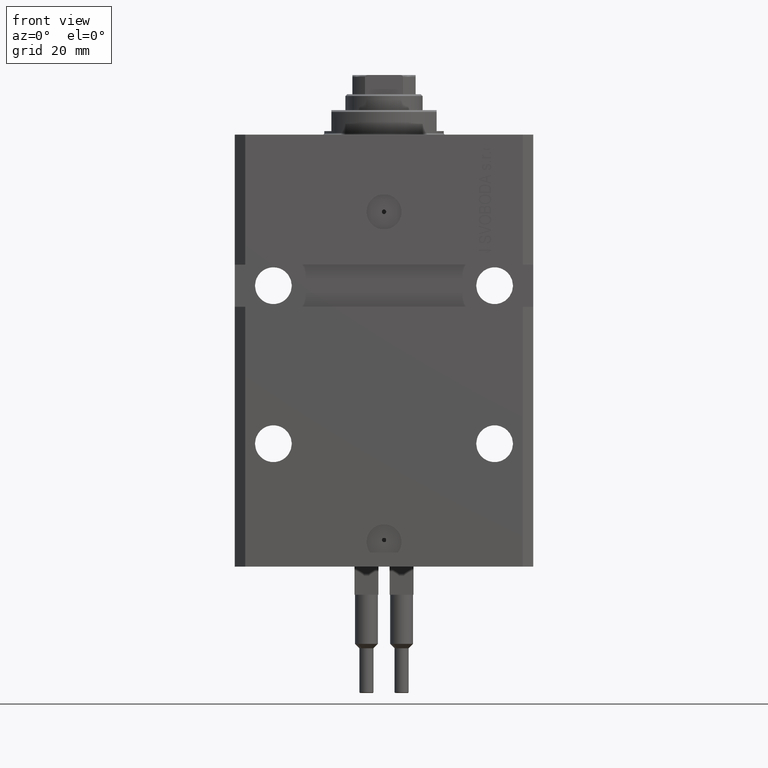
[diagram: clean part render]
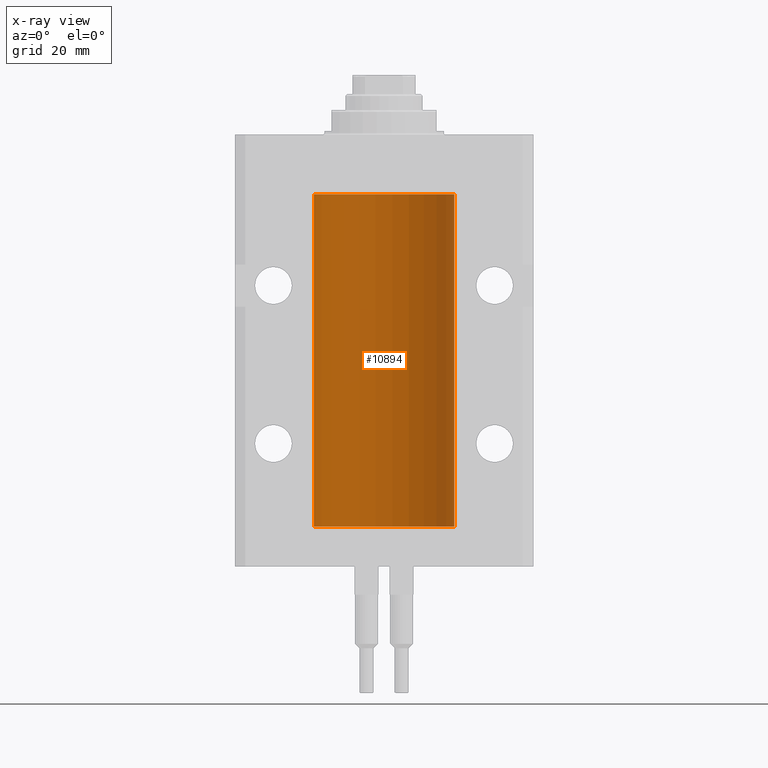
[diagram: x-ray — body ghosted, one internal face saturated and labeled with its STEP entity id]
A machine part, front view, then the same camera in x-ray: the body is ghosted and one INTERNAL B-rep face — a face not visible from any outside direction — is saturated and labeled: STEP entity #10894.
In plain terms, the highlighted cylindrical surface (partial cylindrical patch) has radius 20 mm, axis along (0, 0, 1).
Its self-contained STEP definition (entity closure, byte-faithful):
#650 = FACE_OUTER_BOUND ( 'NONE', #27415, .T. ) ;
#852 = EDGE_CURVE ( 'NONE', #36274, #1421, #13907, .T. ) ;
#1147 = CARTESIAN_POINT ( 'NONE',  ( -19.99023380173166231, 0.6249420416828462832, -23.83670793056396064 ) ) ;
#1387 = DIRECTION ( 'NONE',  ( -0.000000000000000000, -0.000000000000000000, 1.000000000000000000 ) ) ;
#1388 = CARTESIAN_POINT ( 'NONE',  ( -19.99947377218718714, 0.1636439183262877461, -23.39126364004656011 ) ) ;
#1421 = VERTEX_POINT ( 'NONE', #20654 ) ;
#1484 = CARTESIAN_POINT ( 'NONE',  ( -20.00000000000010303, 3.580159290815452135E-13, -109.6250000000033253 ) ) ;
#2792 = CARTESIAN_POINT ( 'NONE',  ( 0.000000000000000000, 0.000000000000000000, -17.00000000000000000 ) ) ;
#3119 = LINE ( 'NONE', #18213, #39345 ) ;
#4121 = VECTOR ( 'NONE', #16698, 1000.000000000000000 ) ;
#4376 = CARTESIAN_POINT ( 'NONE',  ( -19.99769349528941476, 0.3253804398728720182, -109.5585582072768318 ) ) ;
#4456 = B_SPLINE_CURVE_WITH_KNOTS ( 'NONE', 3,
 ( #33347, #43978, #17765, #25664, #34560, #11083, #30861, #26399, #34812, #4376, #16027, #26156 ),
 .UNSPECIFIED., .F., .F.,
 ( 4, 2, 2, 2, 2, 4 ),
 ( 1.555867690894744095E-18, 0.0002442693137305176681, 0.0004885386274610337099, 0.0009770772549220949586, 0.001465615882383156099, 0.001954154509844217673 ),
 .UNSPECIFIED. ) ;
#5332 = CYLINDRICAL_SURFACE ( 'NONE', #29927, 20.00000000000000000 ) ;
#6868 = CARTESIAN_POINT ( 'NONE',  ( -20.00000000000000000, -2.867584836844214272E-15, -23.37500000000000000 ) ) ;
#7843 = CARTESIAN_POINT ( 'NONE',  ( -19.99638934703457593, 0.3843678041337688644, -23.50046362978100944 ) ) ;
#8092 = CARTESIAN_POINT ( 'NONE',  ( -19.99023018003212471, 0.6250578794725500931, -24.16284809704970371 ) ) ;
#8401 = ORIENTED_EDGE ( 'NONE', *, *, #852, .F. ) ;
#9025 = EDGE_CURVE ( 'NONE', #14863, #12559, #40923, .T. ) ;
#9585 = CARTESIAN_POINT ( 'NONE',  ( 0.000000000000000000, 0.000000000000000000, -111.5999999999999943 ) ) ;
#10354 = ORIENTED_EDGE ( 'NONE', *, *, #20604, .T. ) ;
#10489 = CARTESIAN_POINT ( 'NONE',  ( 20.00000000000000000, 0.000000000000000000, -111.5999999999999943 ) ) ;
#10894 = ADVANCED_FACE ( 'NONE', ( #650 ), #5332, .F. ) ;
#11083 = CARTESIAN_POINT ( 'NONE',  ( -19.99256581701871838, 0.5573276956901952461, -108.6734856577094916 ) ) ;
#11235 = EDGE_CURVE ( 'NONE', #47408, #31603, #17872, .T. ) ;
#12559 = VERTEX_POINT ( 'NONE', #26732 ) ;
#13907 = CIRCLE ( 'NONE', #46292, 20.00000000000000000 ) ;
#14278 = ORIENTED_EDGE ( 'NONE', *, *, #11235, .F. ) ;
#14507 = CARTESIAN_POINT ( 'NONE',  ( -20.00000000000010303, 3.580159278407742946E-13, -24.62500000000332889 ) ) ;
#14818 = ORIENTED_EDGE ( 'NONE', *, *, #41639, .F. ) ;
#14863 = VERTEX_POINT ( 'NONE', #16793 ) ;
#16027 = CARTESIAN_POINT ( 'NONE',  ( -20.00000000000000355, 0.1631688615953337806, -109.6249999999998721 ) ) ;
#16493 = CARTESIAN_POINT ( 'NONE',  ( -19.99766197842594906, 0.3150331617867667688, -23.45402070102505476 ) ) ;
#16698 = DIRECTION ( 'NONE',  ( -0.000000000000000000, -0.000000000000000000, 1.000000000000000000 ) ) ;
#16793 = CARTESIAN_POINT ( 'NONE',  ( 20.00000000000000000, 0.000000000000000000, -17.00000000000000000 ) ) ;
#17765 = CARTESIAN_POINT ( 'NONE',  ( -19.99947377218718358, 0.1636439183262759223, -108.3912636400465459 ) ) ;
#17872 = LINE ( 'NONE', #31996, #48106 ) ;
#18213 = CARTESIAN_POINT ( 'NONE',  ( -20.00000000000000000, 2.449293598294706513E-15, -111.5999999999999943 ) ) ;
#18864 = DIRECTION ( 'NONE',  ( 1.000000000000000000, 0.000000000000000000, 0.000000000000000000 ) ) ;
#19219 = CARTESIAN_POINT ( 'NONE',  ( -19.99253506710754991, 0.5587120480776751608, -24.32511620830248589 ) ) ;
#19445 = B_SPLINE_CURVE_WITH_KNOTS ( 'NONE', 3,
 ( #6868, #38007, #1388, #16493, #7843, #45437, #1147, #8092, #19219, #46418, #23893, #20197 ),
 .UNSPECIFIED., .F., .F.,
 ( 4, 2, 2, 2, 2, 4 ),
 ( 5.848927291235706941E-19, 0.0002442693137305304075, 0.0004885386274610601645, 0.0009770772549221123059, 0.001465615882383164339, 0.001954154509844215938 ),
 .UNSPECIFIED. ) ;
#20197 = CARTESIAN_POINT ( 'NONE',  ( -20.00000000000010303, 3.580159278407742946E-13, -24.62500000000332889 ) ) ;
#20604 = EDGE_CURVE ( 'NONE', #25764, #31603, #19445, .T. ) ;
#20606 = DIRECTION ( 'NONE',  ( -0.000000000000000000, -0.000000000000000000, 1.000000000000000000 ) ) ;
#20654 = CARTESIAN_POINT ( 'NONE',  ( -20.00000000000000000, 2.449293598294706513E-15, -111.5999999999999943 ) ) ;
#22007 = LINE ( 'NONE', #37586, #43979 ) ;
#23234 = ORIENTED_EDGE ( 'NONE', *, *, #27911, .T. ) ;
#23893 = CARTESIAN_POINT ( 'NONE',  ( -20.00000000000000000, 0.1631688615953320320, -24.62499999999985434 ) ) ;
#24343 = VERTEX_POINT ( 'NONE', #1484 ) ;
#25664 = CARTESIAN_POINT ( 'NONE',  ( -19.99766197842594906, 0.3150331617867563327, -108.4540207010250299 ) ) ;
#25764 = VERTEX_POINT ( 'NONE', #39938 ) ;
#26156 = CARTESIAN_POINT ( 'NONE',  ( -20.00000000000010303, 3.580159290815452135E-13, -109.6250000000033253 ) ) ;
#26399 = CARTESIAN_POINT ( 'NONE',  ( -19.99023018003212471, 0.6250578794725484277, -109.1628480970496895 ) ) ;
#26732 = CARTESIAN_POINT ( 'NONE',  ( -20.00000000000000000, 2.449293598294706513E-15, -17.00000000000000000 ) ) ;
#27154 = ORIENTED_EDGE ( 'NONE', *, *, #9025, .T. ) ;
#27415 = EDGE_LOOP ( 'NONE', ( #43002, #8401, #23234, #27154, #14818, #10354, #14278, #44131 ) ) ;
#27892 = DIRECTION ( 'NONE',  ( 1.000000000000000000, 0.000000000000000000, 0.000000000000000000 ) ) ;
#27911 = EDGE_CURVE ( 'NONE', #36274, #14863, #35962, .T. ) ;
#28298 = CARTESIAN_POINT ( 'NONE',  ( 20.00000000000000000, 0.000000000000000000, -111.5999999999999943 ) ) ;
#29927 = AXIS2_PLACEMENT_3D ( 'NONE', #46657, #1387, #31098 ) ;
#30424 = DIRECTION ( 'NONE',  ( -0.000000000000000000, -0.000000000000000000, 1.000000000000000000 ) ) ;
#30861 = CARTESIAN_POINT ( 'NONE',  ( -19.99023380173165876, 0.6249420416828411762, -108.8367079305639322 ) ) ;
#31098 = DIRECTION ( 'NONE',  ( 1.000000000000000000, 0.000000000000000000, 0.000000000000000000 ) ) ;
#31603 = VERTEX_POINT ( 'NONE', #14507 ) ;
#31996 = CARTESIAN_POINT ( 'NONE',  ( -20.00000000000000000, 2.449293598294706513E-15, -111.5999999999999943 ) ) ;
#33347 = CARTESIAN_POINT ( 'NONE',  ( -20.00000000000000000, -1.494965790691426527E-14, -108.3750000000000000 ) ) ;
#34560 = CARTESIAN_POINT ( 'NONE',  ( -19.99638934703457593, 0.3843678041337614260, -108.5004636297810094 ) ) ;
#34812 = CARTESIAN_POINT ( 'NONE',  ( -19.99253506710754991, 0.5587120480776772702, -109.3251162083024894 ) ) ;
#35962 = LINE ( 'NONE', #28298, #4121 ) ;
#36274 = VERTEX_POINT ( 'NONE', #10489 ) ;
#37586 = CARTESIAN_POINT ( 'NONE',  ( -20.00000000000000000, 2.449293598294706513E-15, -111.5999999999999943 ) ) ;
#38007 = CARTESIAN_POINT ( 'NONE',  ( -19.99999999999999645, 0.08259581631026780002, -23.37500000000000000 ) ) ;
#39345 = VECTOR ( 'NONE', #48389, 1000.000000000000000 ) ;
#39938 = CARTESIAN_POINT ( 'NONE',  ( -20.00000000000000000, -2.867584836844214272E-15, -23.37500000000000000 ) ) ;
#40923 = CIRCLE ( 'NONE', #48158, 20.00000000000000000 ) ;
#41592 = CARTESIAN_POINT ( 'NONE',  ( -20.00000000000000000, -1.494965790691426527E-14, -108.3750000000000000 ) ) ;
#41639 = EDGE_CURVE ( 'NONE', #25764, #12559, #22007, .T. ) ;
#43002 = ORIENTED_EDGE ( 'NONE', *, *, #48949, .F. ) ;
#43978 = CARTESIAN_POINT ( 'NONE',  ( -19.99999999999999289, 0.08259581631025748882, -108.3749999999999716 ) ) ;
#43979 = VECTOR ( 'NONE', #30424, 1000.000000000000000 ) ;
#44131 = ORIENTED_EDGE ( 'NONE', *, *, #44286, .T. ) ;
#44286 = EDGE_CURVE ( 'NONE', #47408, #24343, #4456, .T. ) ;
#44591 = DIRECTION ( 'NONE',  ( 0.000000000000000000, 0.000000000000000000, 1.000000000000000000 ) ) ;
#45437 = CARTESIAN_POINT ( 'NONE',  ( -19.99256581701871482, 0.5573276956902001311, -23.67348565770948809 ) ) ;
#46292 = AXIS2_PLACEMENT_3D ( 'NONE', #9585, #46693, #27892 ) ;
#46418 = CARTESIAN_POINT ( 'NONE',  ( -19.99769349528941120, 0.3253804398728645242, -24.55855820727680339 ) ) ;
#46657 = CARTESIAN_POINT ( 'NONE',  ( 0.000000000000000000, 0.000000000000000000, -111.5999999999999943 ) ) ;
#46693 = DIRECTION ( 'NONE',  ( 0.000000000000000000, 0.000000000000000000, 1.000000000000000000 ) ) ;
#47408 = VERTEX_POINT ( 'NONE', #41592 ) ;
#48106 = VECTOR ( 'NONE', #20606, 1000.000000000000000 ) ;
#48158 = AXIS2_PLACEMENT_3D ( 'NONE', #2792, #44591, #18864 ) ;
#48389 = DIRECTION ( 'NONE',  ( -0.000000000000000000, -0.000000000000000000, 1.000000000000000000 ) ) ;
#48949 = EDGE_CURVE ( 'NONE', #1421, #24343, #3119, .T. ) ;